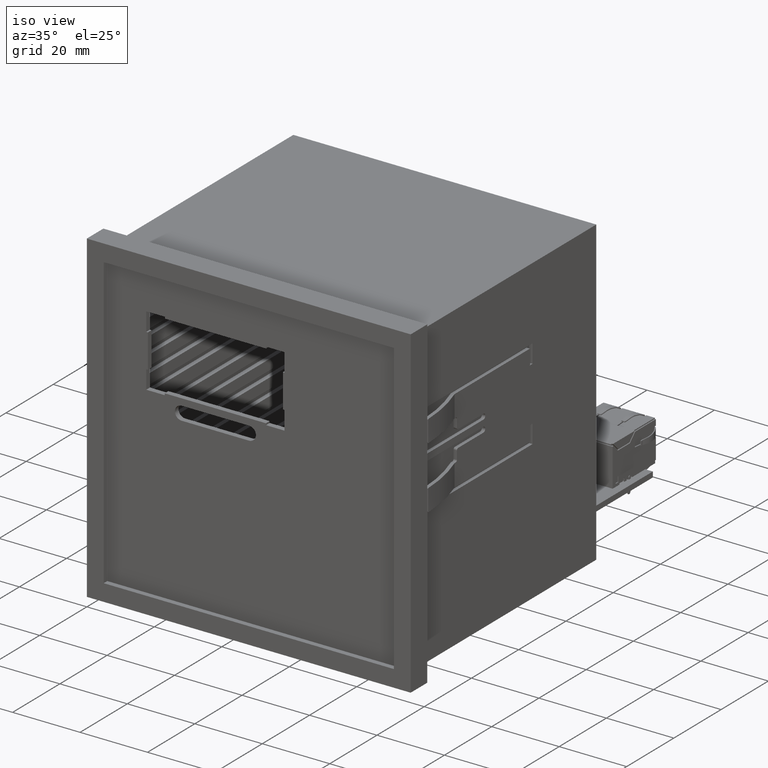
[diagram: clean part render]
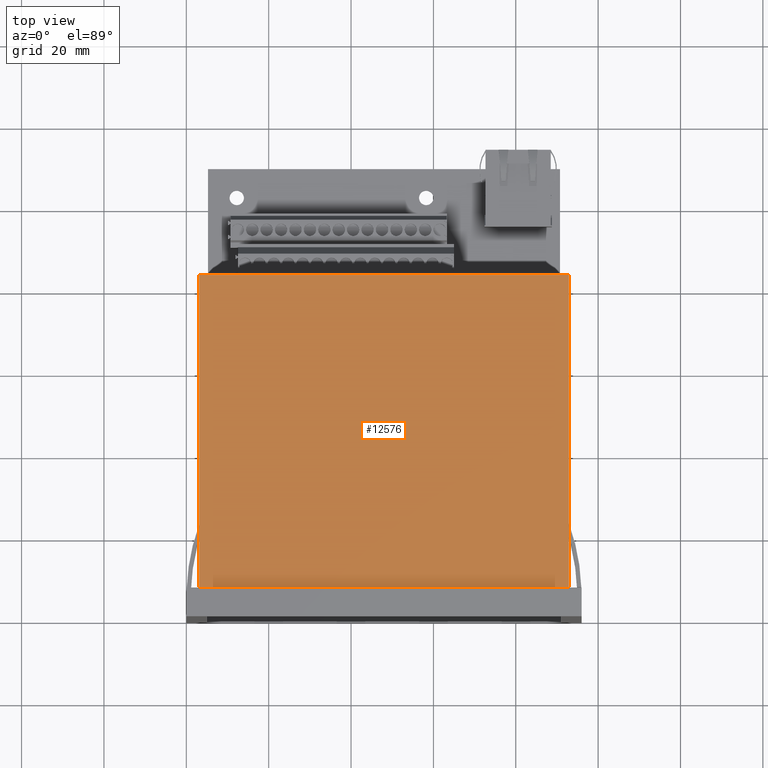
[diagram: tour spotlight — one face highlighted and labeled with its STEP entity id]
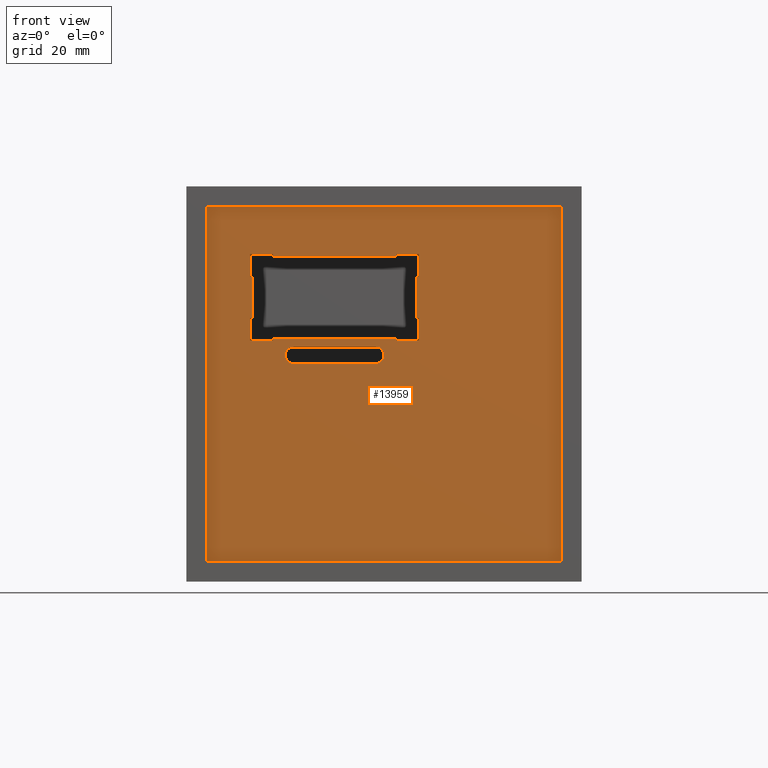
[diagram: tour spotlight — one face highlighted and labeled with its STEP entity id]
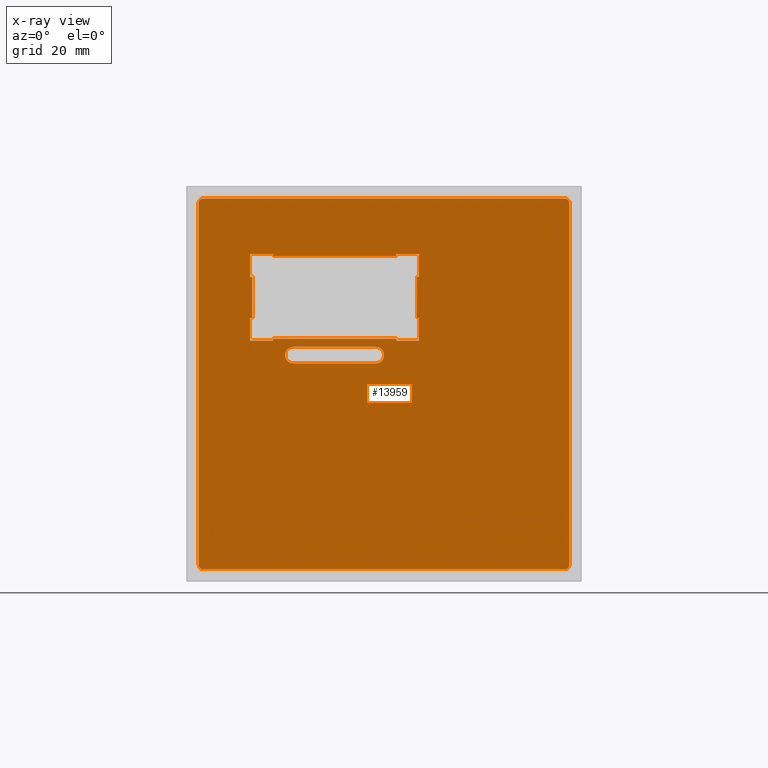
[diagram: x-ray of the same camera — body ghosted, this tour face saturated]
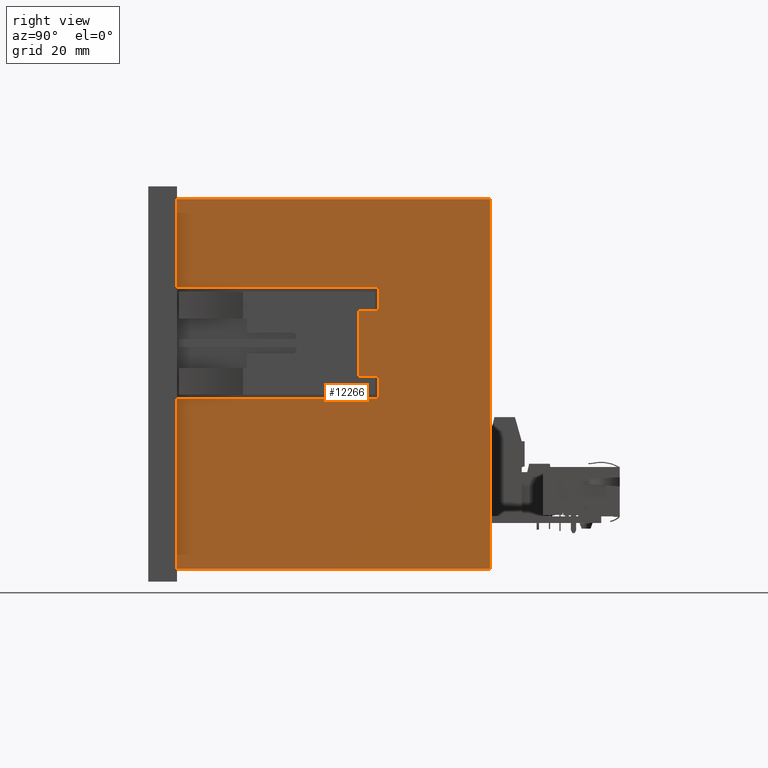
[diagram: tour spotlight — one face highlighted and labeled with its STEP entity id]
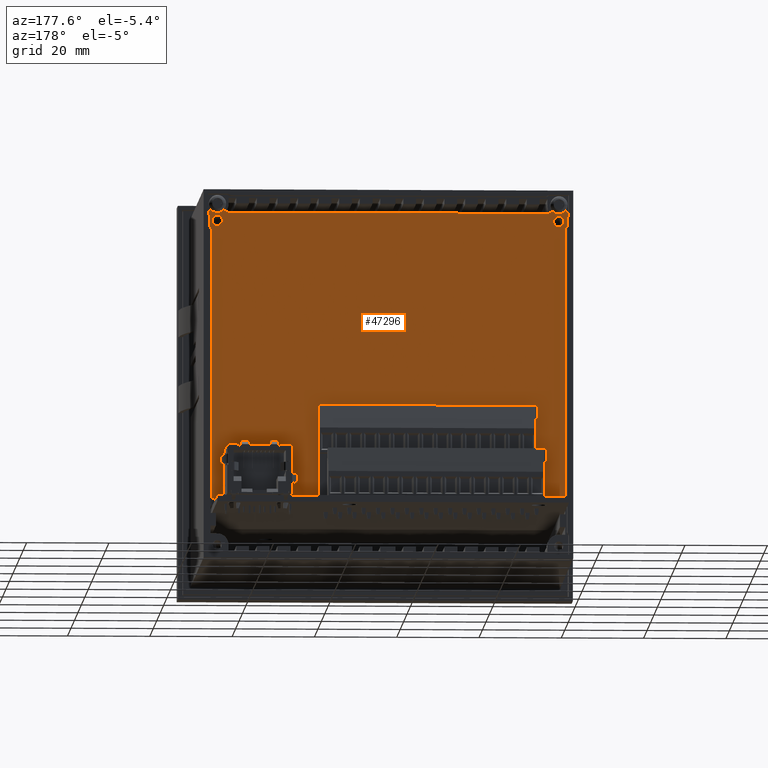
[diagram: tour spotlight — one face highlighted and labeled with its STEP entity id]
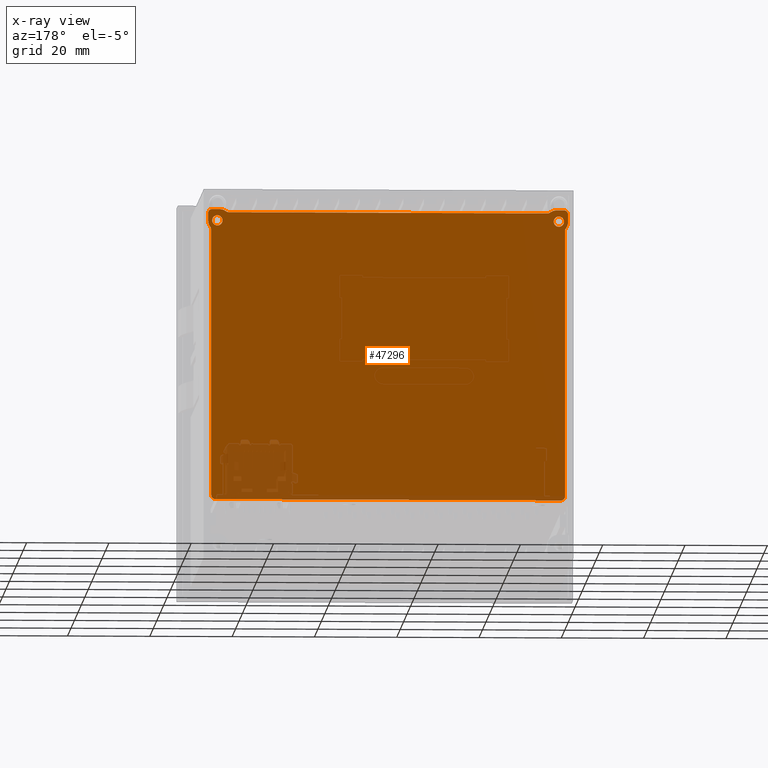
[diagram: x-ray of the same camera — body ghosted, this tour face saturated]
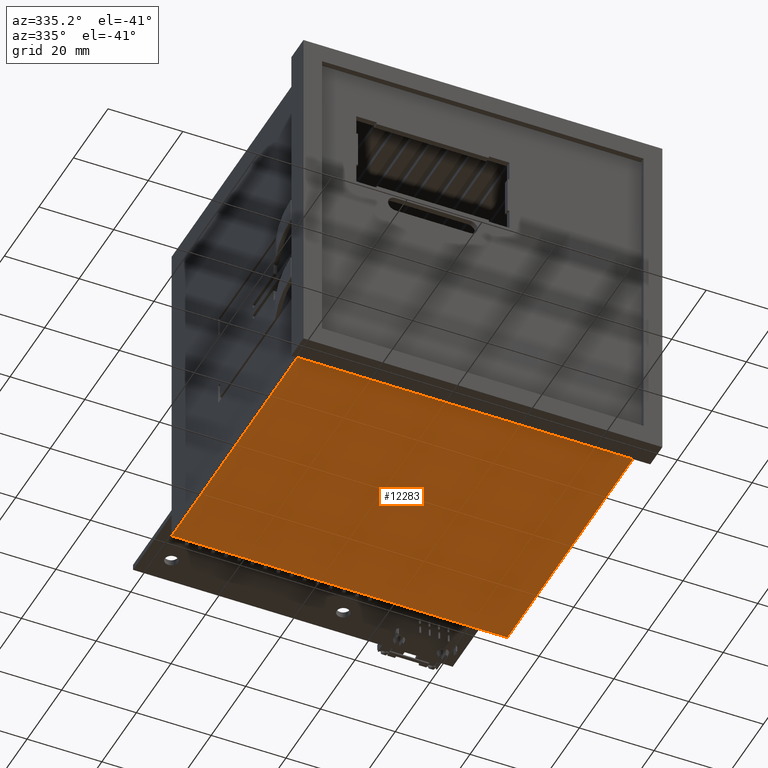
[diagram: tour spotlight — one face highlighted and labeled with its STEP entity id]
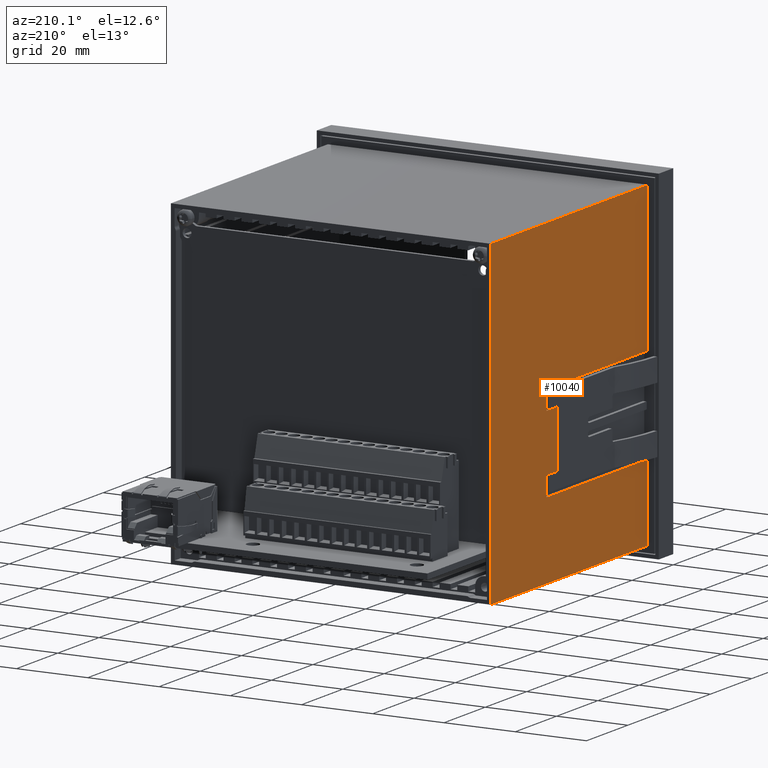
[diagram: tour spotlight — one face highlighted and labeled with its STEP entity id]
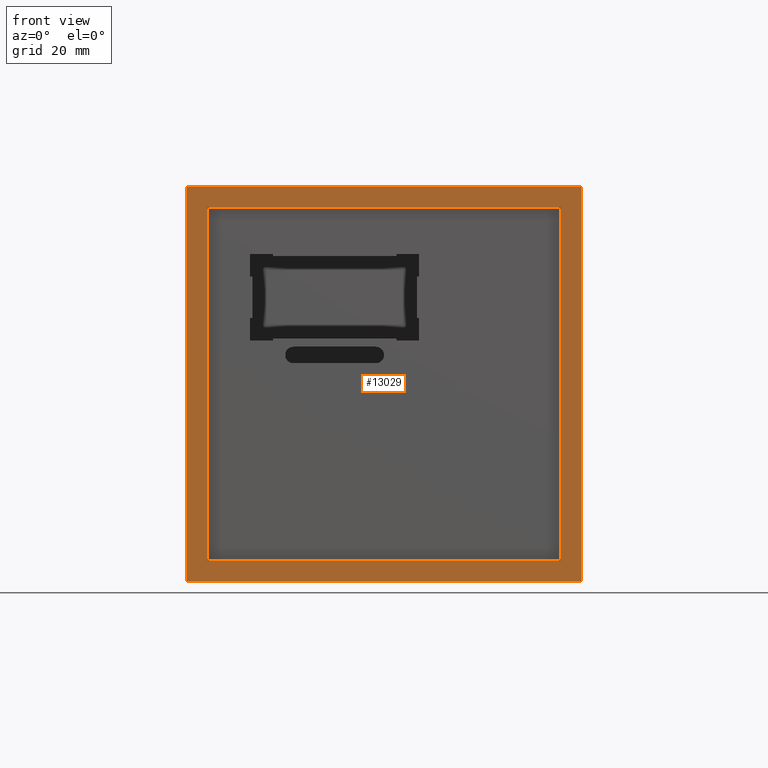
[diagram: tour spotlight — one face highlighted and labeled with its STEP entity id]
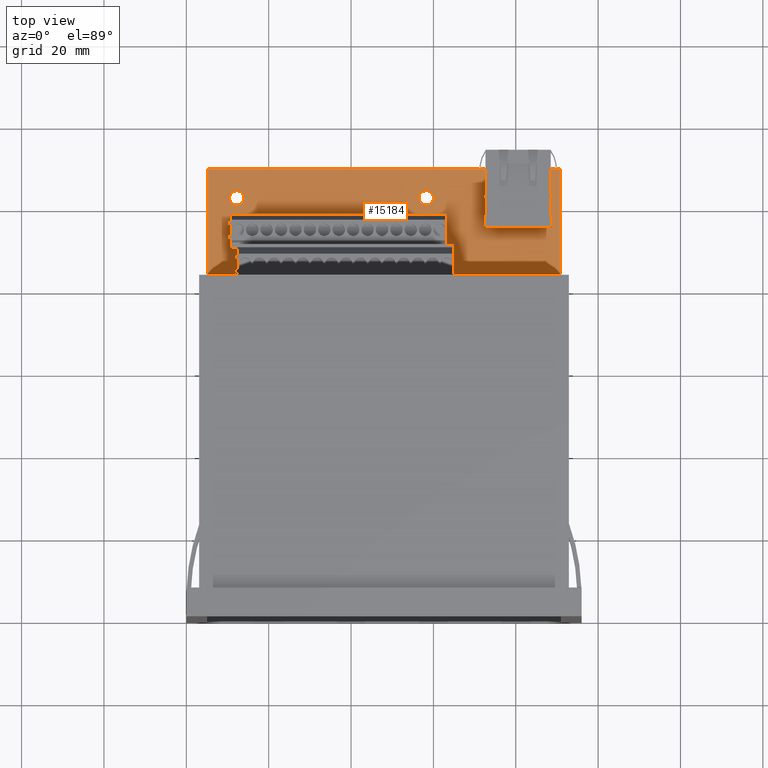
[diagram: tour spotlight — one face highlighted and labeled with its STEP entity id]
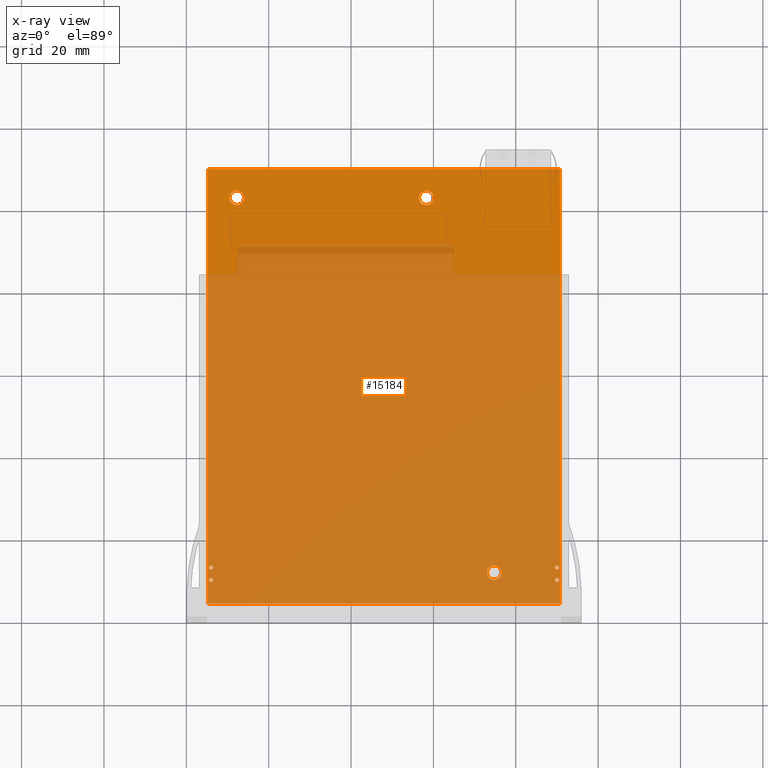
[diagram: x-ray of the same camera — body ghosted, this tour face saturated]
A machine part: a face-by-face anatomy tour. The part has 2012 B-rep faces; the first image is the clean iso view, then the 8 largest visible faces are spotlighted one at a time (largest first), each with its STEP entity span.

Face 1 — top view, entity #12576. In plain terms, the highlighted planar face has unit normal (0, 0, 1).
Definition (entity closure, byte-faithful):
#7466=CARTESIAN_POINT('',(-12.157093014422585,-36.789066365486590,-0.500000000000000));
#7467=VERTEX_POINT('',#7466);
#7468=CARTESIAN_POINT('',(-12.157093014422600,-126.589066365486590,-0.500000000000000));
#7469=VERTEX_POINT('',#7468);
#7470=CARTESIAN_POINT('',(-12.157093014422585,-36.789066365486590,-0.500000000000000));
#7471=DIRECTION('',(0.0,-1.0,0.0));
#7472=VECTOR('',#7471,89.799999999999997);
#7473=LINE('',#7470,#7472);
#7474=EDGE_CURVE('',#7467,#7469,#7473,.T.);
#10009=CARTESIAN_POINT('',(-12.157093014422585,-36.789066365486590,75.500000000000014));
#10010=VERTEX_POINT('',#10009);
#10017=CARTESIAN_POINT('',(-12.157093014422585,-36.789066365486590,-0.500000000000000));
#10018=DIRECTION('',(0.0,0.0,1.0));
#10019=VECTOR('',#10018,76.000000000000014);
#10020=LINE('',#10017,#10019);
#10021=EDGE_CURVE('',#7467,#10010,#10020,.T.);
#12229=CARTESIAN_POINT('',(-12.157093014422600,-126.589066365486590,75.500000000000000));
#12230=VERTEX_POINT('',#12229);
#12231=CARTESIAN_POINT('',(-12.157093014422600,-126.589066365486590,-0.500000000000000));
#12232=DIRECTION('',(0.0,0.0,1.0));
#12233=VECTOR('',#12232,76.0);
#12234=LINE('',#12231,#12233);
#12235=EDGE_CURVE('',#7469,#12230,#12234,.T.);
#12327=CARTESIAN_POINT('',(-12.157093014422585,-36.789066365486590,75.500000000000014));
#12328=DIRECTION('',(0.0,-1.0,0.0));
#12329=VECTOR('',#12328,89.799999999999997);
#12330=LINE('',#12327,#12329);
#12331=EDGE_CURVE('',#10010,#12230,#12330,.T.);
#12565=CARTESIAN_POINT('',(-12.157093014422585,-60.789066365486590,-0.500000000000000));
#12566=DIRECTION('',(1.0,0.0,0.0));
#12567=DIRECTION('',(0.0,0.0,-1.0));
#12568=AXIS2_PLACEMENT_3D('',#12565,#12566,#12567);
#12569=PLANE('',#12568);
#12570=ORIENTED_EDGE('',*,*,#7474,.F.);
#12571=ORIENTED_EDGE('',*,*,#10021,.T.);
#12572=ORIENTED_EDGE('',*,*,#12331,.T.);
#12573=ORIENTED_EDGE('',*,*,#12235,.F.);
#12574=EDGE_LOOP('',(#12570,#12571,#12572,#12573));
#12575=FACE_OUTER_BOUND('',#12574,.T.);
#12576=ADVANCED_FACE('',(#12575),#12569,.T.);

Face 2 — front view, entity #13959. An x-ray twin of the same camera follows (body ghosted, this face saturated) — the face is partly hidden behind the body. In plain terms, the highlighted planar face has unit normal (0, -1, 0).
Definition (entity closure, byte-faithful):
#13272=CARTESIAN_POINT('',(-72.149312758737381,-99.128837455075313,1.0));
#13273=VERTEX_POINT('',#13272);
#13280=CARTESIAN_POINT('',(-72.149312758737381,-98.628837455075313,1.0));
#13281=VERTEX_POINT('',#13280);
#13282=CARTESIAN_POINT('',(-72.149312758737381,-98.628837455075313,1.0));
#13283=DIRECTION('',(0.0,-1.0,0.0));
#13284=VECTOR('',#13283,0.500000000000000);
#13285=LINE('',#13282,#13284);
#13286=EDGE_CURVE('',#13281,#13273,#13285,.T.);
#13310=CARTESIAN_POINT('',(-77.649312758737381,-99.128837455075313,1.0));
#13311=VERTEX_POINT('',#13310);
#13318=CARTESIAN_POINT('',(-72.149312758737381,-99.128837455075313,1.0));
#13319=DIRECTION('',(-1.0,0.0,0.0));
#13320=VECTOR('',#13319,5.500000000000000);
#13321=LINE('',#13318,#13320);
#13322=EDGE_CURVE('',#13273,#13311,#13321,.T.);
#13343=CARTESIAN_POINT('',(-77.149312758737381,-93.628837455075313,1.0));
#13344=VERTEX_POINT('',#13343);
#13351=CARTESIAN_POINT('',(-77.649312758737381,-93.628837455075313,1.0));
#13352=VERTEX_POINT('',#13351);
#13353=CARTESIAN_POINT('',(-77.649312758737381,-93.628837455075313,1.0));
#13354=DIRECTION('',(1.0,0.0,0.0));
#13355=VECTOR('',#13354,0.500000000000000);
#13356=LINE('',#13353,#13355);
#13357=EDGE_CURVE('',#13352,#13344,#13356,.T.);
#13380=CARTESIAN_POINT('',(-77.649312758737381,-99.128837455075313,1.0));
#13381=DIRECTION('',(0.0,1.0,0.0));
#13382=VECTOR('',#13381,5.500000000000000);
#13383=LINE('',#13380,#13382);
#13384=EDGE_CURVE('',#13311,#13352,#13383,.T.);
#13395=CARTESIAN_POINT('',(-42.149312758737381,-98.628837455075313,1.0));
#13396=VERTEX_POINT('',#13395);
#13405=CARTESIAN_POINT('',(-42.149312758737381,-99.128837455075313,1.0));
#13406=VERTEX_POINT('',#13405);
#13407=CARTESIAN_POINT('',(-42.149312758737381,-99.128837455075313,1.0));
#13408=DIRECTION('',(0.0,1.0,0.0));
#13409=VECTOR('',#13408,0.500000000000000);
#13410=LINE('',#13407,#13409);
#13411=EDGE_CURVE('',#13406,#13396,#13410,.T.);
#13444=CARTESIAN_POINT('',(-36.649312758737381,-99.128837455075313,1.0));
#13445=VERTEX_POINT('',#13444);
#13446=CARTESIAN_POINT('',(-36.649312758737381,-99.128837455075313,1.0));
#13447=DIRECTION('',(-1.0,0.0,0.0));
#13448=VECTOR('',#13447,5.500000000000000);
#13449=LINE('',#13446,#13448);
#13450=EDGE_CURVE('',#13445,#13406,#13449,.T.);
#13475=CARTESIAN_POINT('',(-36.649312758737381,-93.628837455075313,1.0));
#13476=VERTEX_POINT('',#13475);
#13477=CARTESIAN_POINT('',(-36.649312758737381,-93.628837455075313,1.0));
#13478=DIRECTION('',(0.0,-1.0,0.0));
#13479=VECTOR('',#13478,5.500000000000000);
#13480=LINE('',#13477,#13479);
#13481=EDGE_CURVE('',#13476,#13445,#13480,.T.);
#13499=CARTESIAN_POINT('',(-37.149312758737381,-93.628837455075313,1.0));
#13500=VERTEX_POINT('',#13499);
#13514=CARTESIAN_POINT('',(-37.149312758737381,-93.628837455075313,1.0));
#13515=DIRECTION('',(1.0,0.0,0.0));
#13516=VECTOR('',#13515,0.500000000000000);
#13517=LINE('',#13514,#13516);
#13518=EDGE_CURVE('',#13500,#13476,#13517,.T.);
#13538=CARTESIAN_POINT('',(-42.149312758737381,-78.128837455075313,1.0));
#13539=VERTEX_POINT('',#13538);
#13546=CARTESIAN_POINT('',(-42.149312758737381,-78.628837455075313,1.0));
#13547=VERTEX_POINT('',#13546);
#13548=CARTESIAN_POINT('',(-42.149312758737381,-78.628837455075313,1.0));
#13549=DIRECTION('',(0.0,1.0,0.0));
#13550=VECTOR('',#13549,0.500000000000000);
#13551=LINE('',#13548,#13550);
#13552=EDGE_CURVE('',#13547,#13539,#13551,.T.);
#13578=CARTESIAN_POINT('',(-37.149312758737381,-83.628837455075313,1.0));
#13579=VERTEX_POINT('',#13578);
#13586=CARTESIAN_POINT('',(-36.649312758737381,-83.628837455075313,1.0));
#13587=VERTEX_POINT('',#13586);
#13588=CARTESIAN_POINT('',(-36.649312758737381,-83.628837455075313,1.0));
#13589=DIRECTION('',(-1.0,0.0,0.0));
#13590=VECTOR('',#13589,0.500000000000000);
#13591=LINE('',#13588,#13590);
#13592=EDGE_CURVE('',#13587,#13579,#13591,.T.);
#13617=CARTESIAN_POINT('',(-36.649312758737381,-78.128837455075313,1.0));
#13618=VERTEX_POINT('',#13617);
#13619=CARTESIAN_POINT('',(-36.649312758737381,-78.128837455075313,1.0));
#13620=DIRECTION('',(0.0,-1.0,0.0));
#13621=VECTOR('',#13620,5.500000000000000);
#13622=LINE('',#13619,#13621);
#13623=EDGE_CURVE('',#13618,#13587,#13622,.T.);
#13646=CARTESIAN_POINT('',(-42.149312758737381,-78.128837455075313,1.0));
#13647=DIRECTION('',(1.0,0.0,0.0));
#13648=VECTOR('',#13647,5.500000000000000);
#13649=LINE('',#13646,#13648);
#13650=EDGE_CURVE('',#13539,#13618,#13649,.T.);
#13671=CARTESIAN_POINT('',(-77.649312758737381,-83.628837455075313,1.0));
#13672=VERTEX_POINT('',#13671);
#13679=CARTESIAN_POINT('',(-77.149312758737381,-83.628837455075313,1.0));
#13680=VERTEX_POINT('',#13679);
#13681=CARTESIAN_POINT('',(-77.149312758737381,-83.628837455075313,1.0));
#13682=DIRECTION('',(-1.0,0.0,0.0));
#13683=VECTOR('',#13682,0.500000000000000);
#13684=LINE('',#13681,#13683);
#13685=EDGE_CURVE('',#13680,#13672,#13684,.T.);
#13711=CARTESIAN_POINT('',(-72.149312758737381,-78.628837455075313,1.0));
#13712=VERTEX_POINT('',#13711);
#13719=CARTESIAN_POINT('',(-72.149312758737381,-78.128837455075313,1.0));
#13720=VERTEX_POINT('',#13719);
#13721=CARTESIAN_POINT('',(-72.149312758737381,-78.128837455075313,1.0));
#13722=DIRECTION('',(0.0,-1.0,0.0));
#13723=VECTOR('',#13722,0.500000000000000);
#13724=LINE('',#13721,#13723);
#13725=EDGE_CURVE('',#13720,#13712,#13724,.T.);
#13750=CARTESIAN_POINT('',(-77.649312758737381,-78.128837455075313,1.0));
#13751=VERTEX_POINT('',#13750);
#13752=CARTESIAN_POINT('',(-77.649312758737381,-78.128837455075313,1.0));
#13753=DIRECTION('',(1.0,0.0,0.0));
#13754=VECTOR('',#13753,5.500000000000000);
#13755=LINE('',#13752,#13754);
#13756=EDGE_CURVE('',#13751,#13720,#13755,.T.);
#13779=CARTESIAN_POINT('',(-77.649312758737381,-83.628837455075313,1.0));
#13780=DIRECTION('',(0.0,1.0,0.0));
#13781=VECTOR('',#13780,5.500000000000000);
#13782=LINE('',#13779,#13781);
#13783=EDGE_CURVE('',#13672,#13751,#13782,.T.);
#13795=CARTESIAN_POINT('',(-72.149312758737381,-98.628837455075313,1.0));
#13796=DIRECTION('',(1.0,0.0,0.0));
#13797=VECTOR('',#13796,30.0);
#13798=LINE('',#13795,#13797);
#13799=EDGE_CURVE('',#13281,#13396,#13798,.T.);
#13811=CARTESIAN_POINT('',(-57.149312758737388,-93.628837455075313,1.0));
#13812=DIRECTION('',(0.0,0.0,1.0));
#13813=DIRECTION('',(1.0,0.0,0.0));
#13814=AXIS2_PLACEMENT_3D('',#13811,#13812,#13813);
#13815=PLANE('',#13814);
#13816=CARTESIAN_POINT('',(-1.149312758737381,-64.628837455075313,1.0));
#13817=VERTEX_POINT('',#13816);
#13818=CARTESIAN_POINT('',(-0.149312758737381,-65.628837455075299,1.0));
#13819=VERTEX_POINT('',#13818);
#13820=CARTESIAN_POINT('',(-1.149312758737381,-65.628837455075299,1.0));
#13821=DIRECTION('',(0.0,0.0,-1.0));
#13822=DIRECTION('',(0.707106781186547,0.707106781186548,0.0));
#13823=AXIS2_PLACEMENT_3D('',#13820,#13821,#13822);
#13824=CIRCLE('',#13823,1.0);
#13825=EDGE_CURVE('',#13817,#13819,#13824,.T.);
#13826=ORIENTED_EDGE('',*,*,#13825,.F.);
#13827=CARTESIAN_POINT('',(-89.149312758737381,-64.628837455075313,1.0));
#13828=VERTEX_POINT('',#13827);
#13829=CARTESIAN_POINT('',(-89.149312758737381,-64.628837455075313,1.0));
#13830=DIRECTION('',(1.0,0.0,0.0));
#13831=VECTOR('',#13830,88.0);
#13832=LINE('',#13829,#13831);
#13833=EDGE_CURVE('',#13828,#13817,#13832,.T.);
#13834=ORIENTED_EDGE('',*,*,#13833,.F.);
#13835=CARTESIAN_POINT('',(-90.149312758737381,-65.628837455075313,1.0));
#13836=VERTEX_POINT('',#13835);
#13837=CARTESIAN_POINT('',(-89.149312758737381,-65.628837455075313,1.0));
#13838=DIRECTION('',(0.0,0.0,-1.000000000000000));
#13839=DIRECTION('',(-0.707106781186548,0.707106781186548,0.0));
#13840=AXIS2_PLACEMENT_3D('',#13837,#13838,#13839);
#13841=CIRCLE('',#13840,1.000000000000000);
#13842=EDGE_CURVE('',#13836,#13828,#13841,.T.);
#13843=ORIENTED_EDGE('',*,*,#13842,.F.);
#13844=CARTESIAN_POINT('',(-90.149312758737366,-153.628837455075310,1.0));
#13845=VERTEX_POINT('',#13844);
#13846=CARTESIAN_POINT('',(-90.149312758737366,-153.628837455075310,1.0));
#13847=DIRECTION('',(0.0,1.0,0.0));
#13848=VECTOR('',#13847,88.0);
#13849=LINE('',#13846,#13848);
#13850=EDGE_CURVE('',#13845,#13836,#13849,.T.);
#13851=ORIENTED_EDGE('',*,*,#13850,.F.);
#13852=CARTESIAN_POINT('',(-89.149312758737366,-154.628837455075310,1.0));
#13853=VERTEX_POINT('',#13852);
#13854=CARTESIAN_POINT('',(-89.149312758737366,-153.628837455075310,1.0));
#13855=DIRECTION('',(0.0,0.0,-1.000000000000000));
#13856=DIRECTION('',(-0.707106781186548,-0.707106781186548,0.0));
#13857=AXIS2_PLACEMENT_3D('',#13854,#13855,#13856);
#13858=CIRCLE('',#13857,1.000000000000000);
#13859=EDGE_CURVE('',#13853,#13845,#13858,.T.);
#13860=ORIENTED_EDGE('',*,*,#13859,.F.);
#13861=CARTESIAN_POINT('',(-1.149312758737381,-154.628837455075310,1.0));
#13862=VERTEX_POINT('',#13861);
#13863=CARTESIAN_POINT('',(-1.149312758737381,-154.628837455075310,1.0));
#13864=DIRECTION('',(-1.0,0.0,0.0));
#13865=VECTOR('',#13864,87.999999999999986);
#13866=LINE('',#13863,#13865);
#13867=EDGE_CURVE('',#13862,#13853,#13866,.T.);
#13868=ORIENTED_EDGE('',*,*,#13867,.F.);
#13869=CARTESIAN_POINT('',(-0.149312758737381,-153.628837455075310,1.0));
#13870=VERTEX_POINT('',#13869);
#13871=CARTESIAN_POINT('',(-1.149312758737381,-153.628837455075310,1.0));
#13872=DIRECTION('',(0.0,0.0,-1.000000000000000));
#13873=DIRECTION('',(0.707106781186548,-0.707106781186548,0.0));
#13874=AXIS2_PLACEMENT_3D('',#13871,#13872,#13873);
#13875=CIRCLE('',#13874,1.000000000000000);
#13876=EDGE_CURVE('',#13870,#13862,#13875,.T.);
#13877=ORIENTED_EDGE('',*,*,#13876,.F.);
#13878=CARTESIAN_POINT('',(-0.149312758737381,-65.628837455075299,1.0));
#13879=DIRECTION('',(0.0,-1.0,0.0));
#13880=VECTOR('',#13879,88.000000000000014);
#13881=LINE('',#13878,#13880);
#13882=EDGE_CURVE('',#13819,#13870,#13881,.T.);
#13883=ORIENTED_EDGE('',*,*,#13882,.F.);
#13884=EDGE_LOOP('',(#13826,#13834,#13843,#13851,#13860,#13868,#13877,#13883));
#13885=FACE_OUTER_BOUND('',#13884,.T.);
#13886=ORIENTED_EDGE('',*,*,#13286,.T.);
#13887=ORIENTED_EDGE('',*,*,#13322,.T.);
#13888=ORIENTED_EDGE('',*,*,#13384,.T.);
#13889=ORIENTED_EDGE('',*,*,#13357,.T.);
#13890=CARTESIAN_POINT('',(-77.149312758737381,-83.628837455075313,1.0));
#13891=DIRECTION('',(0.0,-1.0,0.0));
#13892=VECTOR('',#13891,10.0);
#13893=LINE('',#13890,#13892);
#13894=EDGE_CURVE('',#13680,#13344,#13893,.T.);
#13895=ORIENTED_EDGE('',*,*,#13894,.F.);
#13896=ORIENTED_EDGE('',*,*,#13685,.T.);
#13897=ORIENTED_EDGE('',*,*,#13783,.T.);
#13898=ORIENTED_EDGE('',*,*,#13756,.T.);
#13899=ORIENTED_EDGE('',*,*,#13725,.T.);
#13900=CARTESIAN_POINT('',(-42.149312758737381,-78.628837455075313,1.0));
#13901=DIRECTION('',(-1.0,0.0,0.0));
#13902=VECTOR('',#13901,30.0);
#13903=LINE('',#13900,#13902);
#13904=EDGE_CURVE('',#13547,#13712,#13903,.T.);
#13905=ORIENTED_EDGE('',*,*,#13904,.F.);
#13906=ORIENTED_EDGE('',*,*,#13552,.T.);
#13907=ORIENTED_EDGE('',*,*,#13650,.T.);
#13908=ORIENTED_EDGE('',*,*,#13623,.T.);
#13909=ORIENTED_EDGE('',*,*,#13592,.T.);
#13910=CARTESIAN_POINT('',(-37.149312758737381,-93.628837455075313,1.0));
#13911=DIRECTION('',(0.0,1.0,0.0));
#13912=VECTOR('',#13911,10.0);
#13913=LINE('',#13910,#13912);
#13914=EDGE_CURVE('',#13500,#13579,#13913,.T.);
#13915=ORIENTED_EDGE('',*,*,#13914,.F.);
#13916=ORIENTED_EDGE('',*,*,#13518,.T.);
#13917=ORIENTED_EDGE('',*,*,#13481,.T.);
#13918=ORIENTED_EDGE('',*,*,#13450,.T.);
#13919=ORIENTED_EDGE('',*,*,#13411,.T.);
#13920=ORIENTED_EDGE('',*,*,#13799,.F.);
#13921=EDGE_LOOP('',(#13886,#13887,#13888,#13889,#13895,#13896,#13897,#13898,#13899,#13905,#13906,#13907,#13908,#13909,#13915,#13916,#13917,#13918,#13919,#13920));
#13922=FACE_BOUND('',#13921,.T.);
#13923=CARTESIAN_POINT('',(-47.149312758737388,-100.628837455075310,1.0));
#13924=VERTEX_POINT('',#13923);
#13925=CARTESIAN_POINT('',(-47.149312758737388,-104.628837455075310,1.0));
#13926=VERTEX_POINT('',#13925);
#13927=CARTESIAN_POINT('',(-47.149312758737388,-102.628837455075310,1.0));
#13928=DIRECTION('',(0.0,0.0,-1.0));
#13929=DIRECTION('',(1.0,0.0,0.0));
#13930=AXIS2_PLACEMENT_3D('',#13927,#13928,#13929);
#13931=CIRCLE('',#13930,2.0);
#13932=EDGE_CURVE('',#13924,#13926,#13931,.T.);
#13933=ORIENTED_EDGE('',*,*,#13932,.T.);
#13934=CARTESIAN_POINT('',(-67.149312758737381,-104.628837455075310,1.0));
#13935=VERTEX_POINT('',#13934);
#13936=CARTESIAN_POINT('',(-47.149312758737388,-104.628837455075310,1.0));
#13937=DIRECTION('',(-1.0,0.0,0.0));
#13938=VECTOR('',#13937,19.999999999999993);
#13939=LINE('',#13936,#13938);
#13940=EDGE_CURVE('',#13926,#13935,#13939,.T.);
#13941=ORIENTED_EDGE('',*,*,#13940,.T.);
#13942=CARTESIAN_POINT('',(-67.149312758737381,-100.628837455075310,1.0));
#13943=VERTEX_POINT('',#13942);
#13944=CARTESIAN_POINT('',(-67.149312758737381,-102.628837455075310,1.0));
#13945=DIRECTION('',(0.0,0.0,-1.0));
#13946=DIRECTION('',(1.0,0.0,0.0));
#13947=AXIS2_PLACEMENT_3D('',#13944,#13945,#13946);
#13948=CIRCLE('',#13947,2.0);
#13949=EDGE_CURVE('',#13935,#13943,#13948,.T.);
#13950=ORIENTED_EDGE('',*,*,#13949,.T.);
#13951=CARTESIAN_POINT('',(-67.149312758737381,-100.628837455075310,1.0));
#13952=DIRECTION('',(1.0,0.0,0.0));
#13953=VECTOR('',#13952,19.999999999999993);
#13954=LINE('',#13951,#13953);
#13955=EDGE_CURVE('',#13943,#13924,#13954,.T.);
#13956=ORIENTED_EDGE('',*,*,#13955,.T.);
#13957=EDGE_LOOP('',(#13933,#13941,#13950,#13956));
#13958=FACE_BOUND('',#13957,.T.);
#13959=ADVANCED_FACE('',(#13885,#13922,#13958),#13815,.T.);

Face 3 — right view, entity #12266. In plain terms, the highlighted planar face has unit normal (1, -0, -0).
Definition (entity closure, byte-faithful):
#7468=CARTESIAN_POINT('',(-12.157093014422600,-126.589066365486590,-0.500000000000000));
#7469=VERTEX_POINT('',#7468);
#7476=CARTESIAN_POINT('',(-101.957093014422580,-126.589066365486590,-0.500000000000000));
#7477=VERTEX_POINT('',#7476);
#7478=CARTESIAN_POINT('',(-12.157093014422600,-126.589066365486590,-0.500000000000000));
#7479=DIRECTION('',(-1.0,0.0,0.0));
#7480=VECTOR('',#7479,89.799999999999983);
#7481=LINE('',#7478,#7480);
#7482=EDGE_CURVE('',#7469,#7477,#7481,.T.);
#11625=CARTESIAN_POINT('',(-60.657093014422593,-126.589066365486590,26.499999999999996));
#11626=VERTEX_POINT('',#11625);
#11633=CARTESIAN_POINT('',(-55.157093014422600,-126.589066365486590,26.500000000000000));
#11634=VERTEX_POINT('',#11633);
#11635=CARTESIAN_POINT('',(-55.157093014422600,-126.589066365486590,26.500000000000000));
#11636=DIRECTION('',(-1.0,0.0,0.0));
#11637=VECTOR('',#11636,5.499999999999993);
#11638=LINE('',#11635,#11637);
#11639=EDGE_CURVE('',#11634,#11626,#11638,.T.);
#11664=CARTESIAN_POINT('',(-55.157093014422600,-126.589066365486590,31.500000000000000));
#11665=VERTEX_POINT('',#11664);
#11666=CARTESIAN_POINT('',(-55.157093014422600,-126.589066365486590,31.500000000000000));
#11667=DIRECTION('',(0.0,0.0,-1.0));
#11668=VECTOR('',#11667,5.0);
#11669=LINE('',#11666,#11668);
#11670=EDGE_CURVE('',#11665,#11634,#11669,.T.);
#11695=CARTESIAN_POINT('',(-39.157093014422600,-126.589066365486590,31.500000000000000));
#11696=VERTEX_POINT('',#11695);
#11697=CARTESIAN_POINT('',(-39.157093014422600,-126.589066365486590,31.500000000000000));
#11698=DIRECTION('',(-1.0,0.0,0.0));
#11699=VECTOR('',#11698,16.0);
#11700=LINE('',#11697,#11699);
#11701=EDGE_CURVE('',#11696,#11665,#11700,.T.);
#11726=CARTESIAN_POINT('',(-39.157093014422593,-126.589066365486590,26.500000000000004));
#11727=VERTEX_POINT('',#11726);
#11728=CARTESIAN_POINT('',(-39.157093014422593,-126.589066365486590,26.500000000000004));
#11729=DIRECTION('',(0.0,0.0,1.0));
#11730=VECTOR('',#11729,4.999999999999996);
#11731=LINE('',#11728,#11730);
#11732=EDGE_CURVE('',#11727,#11696,#11731,.T.);
#11757=CARTESIAN_POINT('',(-33.657093014422593,-126.589066365486590,26.500000000000000));
#11758=VERTEX_POINT('',#11757);
#11759=CARTESIAN_POINT('',(-33.657093014422593,-126.589066365486590,26.500000000000000));
#11760=DIRECTION('',(-1.0,0.0,0.0));
#11761=VECTOR('',#11760,5.500000000000000);
#11762=LINE('',#11759,#11761);
#11763=EDGE_CURVE('',#11758,#11727,#11762,.T.);
#11788=CARTESIAN_POINT('',(-33.657093014422600,-126.589066365486590,75.500000000000000));
#11789=VERTEX_POINT('',#11788);
#11790=CARTESIAN_POINT('',(-33.657093014422600,-126.589066365486590,75.500000000000000));
#11791=DIRECTION('',(0.0,0.0,-1.0));
#11792=VECTOR('',#11791,49.0);
#11793=LINE('',#11790,#11792);
#11794=EDGE_CURVE('',#11789,#11758,#11793,.T.);
#11818=CARTESIAN_POINT('',(-60.657093014422593,-126.589066365486590,75.500000000000000));
#11819=VERTEX_POINT('',#11818);
#11826=CARTESIAN_POINT('',(-60.657093014422593,-126.589066365486590,26.499999999999996));
#11827=DIRECTION('',(0.0,0.0,1.0));
#11828=VECTOR('',#11827,49.0);
#11829=LINE('',#11826,#11828);
#11830=EDGE_CURVE('',#11626,#11819,#11829,.T.);
#12223=CARTESIAN_POINT('',(-36.157093014422585,-126.589066365486590,-0.500000000000000));
#12224=DIRECTION('',(0.0,-1.0,0.0));
#12225=DIRECTION('',(0.0,0.0,-1.0));
#12226=AXIS2_PLACEMENT_3D('',#12223,#12224,#12225);
#12227=PLANE('',#12226);
#12228=ORIENTED_EDGE('',*,*,#7482,.F.);
#12229=CARTESIAN_POINT('',(-12.157093014422600,-126.589066365486590,75.500000000000000));
#12230=VERTEX_POINT('',#12229);
#12231=CARTESIAN_POINT('',(-12.157093014422600,-126.589066365486590,-0.500000000000000));
#12232=DIRECTION('',(0.0,0.0,1.0));
#12233=VECTOR('',#12232,76.0);
#12234=LINE('',#12231,#12233);
#12235=EDGE_CURVE('',#7469,#12230,#12234,.T.);
#12236=ORIENTED_EDGE('',*,*,#12235,.T.);
#12237=CARTESIAN_POINT('',(-12.157093014422600,-126.589066365486590,75.500000000000000));
#12238=DIRECTION('',(-1.0,0.0,0.0));
#12239=VECTOR('',#12238,21.500000000000000);
#12240=LINE('',#12237,#12239);
#12241=EDGE_CURVE('',#12230,#11789,#12240,.T.);
#12242=ORIENTED_EDGE('',*,*,#12241,.T.);
#12243=ORIENTED_EDGE('',*,*,#11794,.T.);
#12244=ORIENTED_EDGE('',*,*,#11763,.T.);
#12245=ORIENTED_EDGE('',*,*,#11732,.T.);
#12246=ORIENTED_EDGE('',*,*,#11701,.T.);
#12247=ORIENTED_EDGE('',*,*,#11670,.T.);
#12248=ORIENTED_EDGE('',*,*,#11639,.T.);
#12249=ORIENTED_EDGE('',*,*,#11830,.T.);
#12250=CARTESIAN_POINT('',(-101.957093014422580,-126.589066365486590,75.500000000000000));
#12251=VERTEX_POINT('',#12250);
#12252=CARTESIAN_POINT('',(-60.657093014422593,-126.589066365486590,75.500000000000000));
#12253=DIRECTION('',(-1.0,0.0,0.0));
#12254=VECTOR('',#12253,41.299999999999990);
#12255=LINE('',#12252,#12254);
#12256=EDGE_CURVE('',#11819,#12251,#12255,.T.);
#12257=ORIENTED_EDGE('',*,*,#12256,.T.);
#12258=CARTESIAN_POINT('',(-101.957093014422580,-126.589066365486590,-0.500000000000000));
#12259=DIRECTION('',(0.0,0.0,1.0));
#12260=VECTOR('',#12259,76.0);
#12261=LINE('',#12258,#12260);
#12262=EDGE_CURVE('',#7477,#12251,#12261,.T.);
#12263=ORIENTED_EDGE('',*,*,#12262,.F.);
#12264=EDGE_LOOP('',(#12228,#12236,#12242,#12243,#12244,#12245,#12246,#12247,#12248,#12249,#12257,#12263));
#12265=FACE_OUTER_BOUND('',#12264,.T.);
#12266=ADVANCED_FACE('',(#12265),#12227,.T.);

Face 4 — auxiliary view, entity #47296. An x-ray twin of the same camera follows (body ghosted, this face saturated) — the face is partly hidden behind the body. In plain terms, the highlighted planar face has unit normal (0, 1, 0).
Definition (entity closure, byte-faithful):
#46964=CARTESIAN_POINT('',(30.750000000000000,-53.0,0.0));
#46965=VERTEX_POINT('',#46964);
#46981=CARTESIAN_POINT('',(28.250000000000000,-53.0,0.0));
#46982=VERTEX_POINT('',#46981);
#46989=CARTESIAN_POINT('',(29.500000000000000,-53.0,0.0));
#46990=DIRECTION('',(0.0,0.0,-1.0));
#46991=DIRECTION('',(1.0,0.0,0.0));
#46992=AXIS2_PLACEMENT_3D('',#46989,#46990,#46991);
#46993=CIRCLE('',#46992,1.250000000000000);
#46994=EDGE_CURVE('',#46965,#46982,#46993,.T.);
#47006=CARTESIAN_POINT('',(-52.250000000000000,-53.0,0.0));
#47007=VERTEX_POINT('',#47006);
#47023=CARTESIAN_POINT('',(-54.750000000000000,-53.0,0.0));
#47024=VERTEX_POINT('',#47023);
#47031=CARTESIAN_POINT('',(-53.500000000000000,-53.0,0.0));
#47032=DIRECTION('',(0.0,0.0,-1.0));
#47033=DIRECTION('',(1.0,0.0,0.0));
#47034=AXIS2_PLACEMENT_3D('',#47031,#47032,#47033);
#47035=CIRCLE('',#47034,1.250000000000000);
#47036=EDGE_CURVE('',#47007,#47024,#47035,.T.);
#47046=CARTESIAN_POINT('',(30.0,15.0,0.0));
#47047=VERTEX_POINT('',#47046);
#47048=CARTESIAN_POINT('',(31.0,14.0,0.0));
#47049=VERTEX_POINT('',#47048);
#47050=CARTESIAN_POINT('',(30.0,14.0,0.0));
#47051=DIRECTION('',(0.0,0.0,-1.000000000000000));
#47052=DIRECTION('',(0.707106781186548,0.707106781186548,0.0));
#47053=AXIS2_PLACEMENT_3D('',#47050,#47051,#47052);
#47054=CIRCLE('',#47053,1.000000000000000);
#47055=EDGE_CURVE('',#47047,#47049,#47054,.T.);
#47089=CARTESIAN_POINT('',(31.0,-50.750000000000007,0.0));
#47090=VERTEX_POINT('',#47089);
#47091=CARTESIAN_POINT('',(31.0,14.0,0.0));
#47092=DIRECTION('',(0.0,-1.0,0.0));
#47093=VECTOR('',#47092,64.750000000000000);
#47094=LINE('',#47091,#47093);
#47095=EDGE_CURVE('',#47049,#47090,#47094,.T.);
#47114=CARTESIAN_POINT('',(3.162393162393163,-15.662393162393162,0.0));
#47115=DIRECTION('',(0.0,0.0,1.0));
#47116=DIRECTION('',(1.0,0.0,0.0));
#47117=AXIS2_PLACEMENT_3D('',#47114,#47115,#47116);
#47118=PLANE('',#47117);
#47119=ORIENTED_EDGE('',*,*,#47055,.F.);
#47120=CARTESIAN_POINT('',(-54.000000000000050,15.0,0.0));
#47121=VERTEX_POINT('',#47120);
#47122=CARTESIAN_POINT('',(-54.000000000000050,15.0,0.0));
#47123=DIRECTION('',(1.0,0.0,0.0));
#47124=VECTOR('',#47123,84.000000000000057);
#47125=LINE('',#47122,#47124);
#47126=EDGE_CURVE('',#47121,#47047,#47125,.T.);
#47127=ORIENTED_EDGE('',*,*,#47126,.F.);
#47128=CARTESIAN_POINT('',(-55.000000000000057,14.0,0.0));
#47129=VERTEX_POINT('',#47128);
#47130=CARTESIAN_POINT('',(-54.000000000000050,14.0,0.0));
#47131=DIRECTION('',(0.0,0.0,-1.000000000000000));
#47132=DIRECTION('',(-0.707106781186548,0.707106781186548,0.0));
#47133=AXIS2_PLACEMENT_3D('',#47130,#47131,#47132);
#47134=CIRCLE('',#47133,1.000000000000000);
#47135=EDGE_CURVE('',#47129,#47121,#47134,.T.);
#47136=ORIENTED_EDGE('',*,*,#47135,.F.);
#47137=CARTESIAN_POINT('',(-55.000000000000007,-50.749999999999979,0.0));
#47138=VERTEX_POINT('',#47137);
#47139=CARTESIAN_POINT('',(-55.000000000000007,-50.749999999999979,0.0));
#47140=DIRECTION('',(0.0,1.0,0.0));
#47141=VECTOR('',#47140,64.749999999999972);
#47142=LINE('',#47139,#47141);
#47143=EDGE_CURVE('',#47138,#47129,#47142,.T.);
#47144=ORIENTED_EDGE('',*,*,#47143,.F.);
#47145=CARTESIAN_POINT('',(-55.200000000000010,-51.349999999999987,0.0));
#47146=VERTEX_POINT('',#47145);
#47147=CARTESIAN_POINT('',(-56.0,-50.749999999999979,0.0));
#47148=DIRECTION('',(0.0,0.0,1.000000000000000));
#47149=DIRECTION('',(0.948683298050512,-0.316227766016845,0.0));
#47150=AXIS2_PLACEMENT_3D('',#47147,#47148,#47149);
#47151=CIRCLE('',#47150,1.0);
#47152=EDGE_CURVE('',#47146,#47138,#47151,.T.);
#47153=ORIENTED_EDGE('',*,*,#47152,.F.);
#47154=CARTESIAN_POINT('',(-55.750000000000028,-53.000000000000014,0.0));
#47155=VERTEX_POINT('',#47154);
#47156=CARTESIAN_POINT('',(-53.000000000000028,-53.000000000000014,0.0));
#47157=DIRECTION('',(0.0,0.0,-1.0));
#47158=DIRECTION('',(1.0,0.0,0.0));
#47159=AXIS2_PLACEMENT_3D('',#47156,#47157,#47158);
#47160=CIRCLE('',#47159,2.750000000000000);
#47161=EDGE_CURVE('',#47155,#47146,#47160,.T.);
#47162=ORIENTED_EDGE('',*,*,#47161,.F.);
#47163=CARTESIAN_POINT('',(-55.750000000000028,-54.750000000000014,0.0));
#47164=VERTEX_POINT('',#47163);
#47165=CARTESIAN_POINT('',(-55.750000000000028,-54.750000000000014,0.0));
#47166=DIRECTION('',(0.0,1.0,0.0));
#47167=VECTOR('',#47166,1.750000000000000);
#47168=LINE('',#47165,#47167);
#47169=EDGE_CURVE('',#47164,#47155,#47168,.T.);
#47170=ORIENTED_EDGE('',*,*,#47169,.F.);
#47171=CARTESIAN_POINT('',(-54.750000000000028,-55.750000000000014,0.0));
#47172=VERTEX_POINT('',#47171);
#47173=CARTESIAN_POINT('',(-54.750000000000028,-54.750000000000014,0.0));
#47174=DIRECTION('',(0.0,0.0,-1.000000000000000));
#47175=DIRECTION('',(-0.707106781186548,-0.707106781186548,0.0));
#47176=AXIS2_PLACEMENT_3D('',#47173,#47174,#47175);
#47177=CIRCLE('',#47176,1.000000000000000);
#47178=EDGE_CURVE('',#47172,#47164,#47177,.T.);
#47179=ORIENTED_EDGE('',*,*,#47178,.F.);
#47180=CARTESIAN_POINT('',(-53.000000000000028,-55.750000000000014,0.0));
#47181=VERTEX_POINT('',#47180);
#47182=CARTESIAN_POINT('',(-53.000000000000028,-55.750000000000014,0.0));
#47183=DIRECTION('',(-1.0,0.0,0.0));
#47184=VECTOR('',#47183,1.750000000000000);
#47185=LINE('',#47182,#47184);
#47186=EDGE_CURVE('',#47181,#47172,#47185,.T.);
#47187=ORIENTED_EDGE('',*,*,#47186,.F.);
#47188=CARTESIAN_POINT('',(-51.350000000000016,-55.200000000000003,0.0));
#47189=VERTEX_POINT('',#47188);
#47190=CARTESIAN_POINT('',(-53.000000000000028,-53.000000000000014,0.0));
#47191=DIRECTION('',(0.0,0.0,-1.0));
#47192=DIRECTION('',(1.0,0.0,0.0));
#47193=AXIS2_PLACEMENT_3D('',#47190,#47191,#47192);
#47194=CIRCLE('',#47193,2.750000000000000);
#47195=EDGE_CURVE('',#47189,#47181,#47194,.T.);
#47196=ORIENTED_EDGE('',*,*,#47195,.F.);
#47197=CARTESIAN_POINT('',(-50.750000000000007,-55.0,0.0));
#47198=VERTEX_POINT('',#47197);
#47199=CARTESIAN_POINT('',(-50.750000000000007,-56.0,0.0));
#47200=DIRECTION('',(0.0,0.0,1.0));
#47201=DIRECTION('',(-0.316227766016842,0.948683298050512,0.0));
#47202=AXIS2_PLACEMENT_3D('',#47199,#47200,#47201);
#47203=CIRCLE('',#47202,1.0);
#47204=EDGE_CURVE('',#47198,#47189,#47203,.T.);
#47205=ORIENTED_EDGE('',*,*,#47204,.F.);
#47206=CARTESIAN_POINT('',(26.750000000000000,-55.0,0.0));
#47207=VERTEX_POINT('',#47206);
#47208=CARTESIAN_POINT('',(26.750000000000000,-55.0,0.0));
#47209=DIRECTION('',(-1.0,0.0,0.0));
#47210=VECTOR('',#47209,77.500000000000000);
#47211=LINE('',#47208,#47210);
#47212=EDGE_CURVE('',#47207,#47198,#47211,.T.);
#47213=ORIENTED_EDGE('',*,*,#47212,.F.);
#47214=CARTESIAN_POINT('',(27.350000000000001,-55.200000000000003,0.0));
#47215=VERTEX_POINT('',#47214);
#47216=CARTESIAN_POINT('',(26.750000000000000,-56.0,0.0));
#47217=DIRECTION('',(0.0,0.0,1.0));
#47218=DIRECTION('',(0.316227766016839,0.948683298050513,0.0));
#47219=AXIS2_PLACEMENT_3D('',#47216,#47217,#47218);
#47220=CIRCLE('',#47219,1.0);
#47221=EDGE_CURVE('',#47215,#47207,#47220,.T.);
#47222=ORIENTED_EDGE('',*,*,#47221,.F.);
#47223=CARTESIAN_POINT('',(29.0,-55.750000000000000,0.0));
#47224=VERTEX_POINT('',#47223);
#47225=CARTESIAN_POINT('',(29.0,-53.0,0.0));
#47226=DIRECTION('',(0.0,0.0,1.0));
#47227=DIRECTION('',(1.0,0.0,0.0));
#47228=AXIS2_PLACEMENT_3D('',#47225,#47226,#47227);
#47229=CIRCLE('',#47228,2.750000000000000);
#47230=EDGE_CURVE('',#47215,#47224,#47229,.T.);
#47231=ORIENTED_EDGE('',*,*,#47230,.T.);
#47232=CARTESIAN_POINT('',(30.750000000000000,-55.750000000000000,0.0));
#47233=VERTEX_POINT('',#47232);
#47234=CARTESIAN_POINT('',(29.0,-55.750000000000000,0.0));
#47235=DIRECTION('',(1.0,0.0,0.0));
#47236=VECTOR('',#47235,1.750000000000000);
#47237=LINE('',#47234,#47236);
#47238=EDGE_CURVE('',#47224,#47233,#47237,.T.);
#47239=ORIENTED_EDGE('',*,*,#47238,.T.);
#47240=CARTESIAN_POINT('',(31.750000000000000,-54.750000000000000,0.0));
#47241=VERTEX_POINT('',#47240);
#47242=CARTESIAN_POINT('',(30.750000000000000,-54.750000000000000,0.0));
#47243=DIRECTION('',(0.0,0.0,-1.000000000000000));
#47244=DIRECTION('',(0.707106781186548,-0.707106781186548,0.0));
#47245=AXIS2_PLACEMENT_3D('',#47242,#47243,#47244);
#47246=CIRCLE('',#47245,1.000000000000000);
#47247=EDGE_CURVE('',#47241,#47233,#47246,.T.);
#47248=ORIENTED_EDGE('',*,*,#47247,.F.);
#47249=CARTESIAN_POINT('',(31.750000000000000,-53.0,0.0));
#47250=VERTEX_POINT('',#47249);
#47251=CARTESIAN_POINT('',(31.750000000000000,-54.750000000000000,0.0));
#47252=DIRECTION('',(0.0,1.0,0.0));
#47253=VECTOR('',#47252,1.750000000000000);
#47254=LINE('',#47251,#47253);
#47255=EDGE_CURVE('',#47241,#47250,#47254,.T.);
#47256=ORIENTED_EDGE('',*,*,#47255,.T.);
#47257=CARTESIAN_POINT('',(31.200000000000003,-51.350000000000001,0.0));
#47258=VERTEX_POINT('',#47257);
#47259=CARTESIAN_POINT('',(29.0,-53.0,0.0));
#47260=DIRECTION('',(0.0,0.0,1.0));
#47261=DIRECTION('',(1.0,0.0,0.0));
#47262=AXIS2_PLACEMENT_3D('',#47259,#47260,#47261);
#47263=CIRCLE('',#47262,2.750000000000000);
#47264=EDGE_CURVE('',#47250,#47258,#47263,.T.);
#47265=ORIENTED_EDGE('',*,*,#47264,.T.);
#47266=CARTESIAN_POINT('',(32.0,-50.750000000000007,0.0));
#47267=DIRECTION('',(0.0,0.0,1.0));
#47268=DIRECTION('',(-0.948683298050515,-0.316227766016836,0.0));
#47269=AXIS2_PLACEMENT_3D('',#47266,#47267,#47268);
#47270=CIRCLE('',#47269,1.0);
#47271=EDGE_CURVE('',#47090,#47258,#47270,.T.);
#47272=ORIENTED_EDGE('',*,*,#47271,.F.);
#47273=ORIENTED_EDGE('',*,*,#47095,.F.);
#47274=EDGE_LOOP('',(#47119,#47127,#47136,#47144,#47153,#47162,#47170,#47179,#47187,#47196,#47205,#47213,#47222,#47231,#47239,#47248,#47256,#47265,#47272,#47273));
#47275=FACE_OUTER_BOUND('',#47274,.T.);
#47276=CARTESIAN_POINT('',(29.500000000000000,-53.0,0.0));
#47277=DIRECTION('',(0.0,0.0,-1.0));
#47278=DIRECTION('',(1.0,0.0,0.0));
#47279=AXIS2_PLACEMENT_3D('',#47276,#47277,#47278);
#47280=CIRCLE('',#47279,1.250000000000000);
#47281=EDGE_CURVE('',#46982,#46965,#47280,.T.);
#47282=ORIENTED_EDGE('',*,*,#47281,.T.);
#47283=ORIENTED_EDGE('',*,*,#46994,.T.);
#47284=EDGE_LOOP('',(#47282,#47283));
#47285=FACE_BOUND('',#47284,.T.);
#47286=CARTESIAN_POINT('',(-53.500000000000000,-53.0,0.0));
#47287=DIRECTION('',(0.0,0.0,-1.0));
#47288=DIRECTION('',(1.0,0.0,0.0));
#47289=AXIS2_PLACEMENT_3D('',#47286,#47287,#47288);
#47290=CIRCLE('',#47289,1.250000000000000);
#47291=EDGE_CURVE('',#47024,#47007,#47290,.T.);
#47292=ORIENTED_EDGE('',*,*,#47291,.T.);
#47293=ORIENTED_EDGE('',*,*,#47036,.T.);
#47294=EDGE_LOOP('',(#47292,#47293));
#47295=FACE_BOUND('',#47294,.T.);
#47296=ADVANCED_FACE('',(#47275,#47285,#47295),#47118,.T.);

Face 5 — auxiliary view, entity #12283. In plain terms, the highlighted planar face has unit normal (-0, -0, -1).
Definition (entity closure, byte-faithful):
#7476=CARTESIAN_POINT('',(-101.957093014422580,-126.589066365486590,-0.500000000000000));
#7477=VERTEX_POINT('',#7476);
#7484=CARTESIAN_POINT('',(-101.957093014422600,-36.789066365486590,-0.500000000000000));
#7485=VERTEX_POINT('',#7484);
#7486=CARTESIAN_POINT('',(-101.957093014422580,-126.589066365486590,-0.500000000000000));
#7487=DIRECTION('',(0.0,1.0,0.0));
#7488=VECTOR('',#7487,89.799999999999997);
#7489=LINE('',#7486,#7488);
#7490=EDGE_CURVE('',#7477,#7485,#7489,.T.);
#10024=CARTESIAN_POINT('',(-101.957093014422600,-36.789066365486590,75.500000000000014));
#10025=VERTEX_POINT('',#10024);
#10026=CARTESIAN_POINT('',(-101.957093014422600,-36.789066365486590,-0.500000000000000));
#10027=DIRECTION('',(0.0,0.0,1.0));
#10028=VECTOR('',#10027,76.000000000000014);
#10029=LINE('',#10026,#10028);
#10030=EDGE_CURVE('',#7485,#10025,#10029,.T.);
#12250=CARTESIAN_POINT('',(-101.957093014422580,-126.589066365486590,75.500000000000000));
#12251=VERTEX_POINT('',#12250);
#12258=CARTESIAN_POINT('',(-101.957093014422580,-126.589066365486590,-0.500000000000000));
#12259=DIRECTION('',(0.0,0.0,1.0));
#12260=VECTOR('',#12259,76.0);
#12261=LINE('',#12258,#12260);
#12262=EDGE_CURVE('',#7477,#12251,#12261,.T.);
#12267=CARTESIAN_POINT('',(-101.957093014422580,-126.589066365486590,-0.500000000000000));
#12268=DIRECTION('',(-1.0,0.0,0.0));
#12269=DIRECTION('',(0.0,0.0,1.0));
#12270=AXIS2_PLACEMENT_3D('',#12267,#12268,#12269);
#12271=PLANE('',#12270);
#12272=CARTESIAN_POINT('',(-101.957093014422580,-126.589066365486590,75.500000000000000));
#12273=DIRECTION('',(0.0,1.0,0.0));
#12274=VECTOR('',#12273,89.799999999999997);
#12275=LINE('',#12272,#12274);
#12276=EDGE_CURVE('',#12251,#10025,#12275,.T.);
#12277=ORIENTED_EDGE('',*,*,#12276,.T.);
#12278=ORIENTED_EDGE('',*,*,#10030,.F.);
#12279=ORIENTED_EDGE('',*,*,#7490,.F.);
#12280=ORIENTED_EDGE('',*,*,#12262,.T.);
#12281=EDGE_LOOP('',(#12277,#12278,#12279,#12280));
#12282=FACE_OUTER_BOUND('',#12281,.T.);
#12283=ADVANCED_FACE('',(#12282),#12271,.T.);

Face 6 — auxiliary view, entity #10040. In plain terms, the highlighted planar face has unit normal (-1, 0, 0).
Definition (entity closure, byte-faithful):
#7466=CARTESIAN_POINT('',(-12.157093014422585,-36.789066365486590,-0.500000000000000));
#7467=VERTEX_POINT('',#7466);
#7484=CARTESIAN_POINT('',(-101.957093014422600,-36.789066365486590,-0.500000000000000));
#7485=VERTEX_POINT('',#7484);
#7492=CARTESIAN_POINT('',(-101.957093014422600,-36.789066365486590,-0.500000000000000));
#7493=DIRECTION('',(1.0,0.0,0.0));
#7494=VECTOR('',#7493,89.800000000000011);
#7495=LINE('',#7492,#7494);
#7496=EDGE_CURVE('',#7485,#7467,#7495,.T.);
#9765=CARTESIAN_POINT('',(-58.957093014422540,-36.789066365486590,26.500000000000011));
#9766=VERTEX_POINT('',#9765);
#9773=CARTESIAN_POINT('',(-58.957093014422540,-36.789066365486590,31.499999999999996));
#9774=VERTEX_POINT('',#9773);
#9775=CARTESIAN_POINT('',(-58.957093014422540,-36.789066365486590,31.499999999999996));
#9776=DIRECTION('',(0.0,0.0,-1.0));
#9777=VECTOR('',#9776,4.999999999999986);
#9778=LINE('',#9775,#9777);
#9779=EDGE_CURVE('',#9774,#9766,#9778,.T.);
#9804=CARTESIAN_POINT('',(-74.957093014422526,-36.789066365486590,31.499999999999996));
#9805=VERTEX_POINT('',#9804);
#9806=CARTESIAN_POINT('',(-74.957093014422526,-36.789066365486590,31.499999999999996));
#9807=DIRECTION('',(1.0,0.0,0.0));
#9808=VECTOR('',#9807,15.999999999999986);
#9809=LINE('',#9806,#9808);
#9810=EDGE_CURVE('',#9805,#9774,#9809,.T.);
#9835=CARTESIAN_POINT('',(-74.957093014422526,-36.789066365486590,26.499999999999993));
#9836=VERTEX_POINT('',#9835);
#9837=CARTESIAN_POINT('',(-74.957093014422526,-36.789066365486590,26.499999999999993));
#9838=DIRECTION('',(0.0,0.0,1.0));
#9839=VECTOR('',#9838,5.000000000000004);
#9840=LINE('',#9837,#9839);
#9841=EDGE_CURVE('',#9836,#9805,#9840,.T.);
#9866=CARTESIAN_POINT('',(-80.457093014422540,-36.789066365486590,26.499999999999989));
#9867=VERTEX_POINT('',#9866);
#9868=CARTESIAN_POINT('',(-80.457093014422540,-36.789066365486590,26.499999999999989));
#9869=DIRECTION('',(1.0,0.0,0.0));
#9870=VECTOR('',#9869,5.500000000000014);
#9871=LINE('',#9868,#9870);
#9872=EDGE_CURVE('',#9867,#9836,#9871,.T.);
#9897=CARTESIAN_POINT('',(-80.457093014422597,-36.789066365486590,75.500000000000014));
#9898=VERTEX_POINT('',#9897);
#9899=CARTESIAN_POINT('',(-80.457093014422597,-36.789066365486590,75.500000000000014));
#9900=DIRECTION('',(0.0,0.0,-1.0));
#9901=VECTOR('',#9900,49.000000000000028);
#9902=LINE('',#9899,#9901);
#9903=EDGE_CURVE('',#9898,#9867,#9902,.T.);
#9929=CARTESIAN_POINT('',(-53.457093014422561,-36.789066365486590,75.500000000000014));
#9930=VERTEX_POINT('',#9929);
#9937=CARTESIAN_POINT('',(-53.457093014422540,-36.789066365486590,26.500000000000011));
#9938=VERTEX_POINT('',#9937);
#9939=CARTESIAN_POINT('',(-53.457093014422540,-36.789066365486590,26.500000000000011));
#9940=DIRECTION('',(0.0,0.0,1.0));
#9941=VECTOR('',#9940,49.0);
#9942=LINE('',#9939,#9941);
#9943=EDGE_CURVE('',#9938,#9930,#9942,.T.);
#9966=CARTESIAN_POINT('',(-58.957093014422540,-36.789066365486590,26.500000000000011));
#9967=DIRECTION('',(1.0,0.0,0.0));
#9968=VECTOR('',#9967,5.500000000000000);
#9969=LINE('',#9966,#9968);
#9970=EDGE_CURVE('',#9766,#9938,#9969,.T.);
#9997=CARTESIAN_POINT('',(-101.957093014422600,-36.789066365486590,-0.500000000000000));
#9998=DIRECTION('',(0.0,1.0,0.0));
#9999=DIRECTION('',(0.0,0.0,1.0));
#10000=AXIS2_PLACEMENT_3D('',#9997,#9998,#9999);
#10001=PLANE('',#10000);
#10002=ORIENTED_EDGE('',*,*,#9903,.T.);
#10003=ORIENTED_EDGE('',*,*,#9872,.T.);
#10004=ORIENTED_EDGE('',*,*,#9841,.T.);
#10005=ORIENTED_EDGE('',*,*,#9810,.T.);
#10006=ORIENTED_EDGE('',*,*,#9779,.T.);
#10007=ORIENTED_EDGE('',*,*,#9970,.T.);
#10008=ORIENTED_EDGE('',*,*,#9943,.T.);
#10009=CARTESIAN_POINT('',(-12.157093014422585,-36.789066365486590,75.500000000000014));
#10010=VERTEX_POINT('',#10009);
#10011=CARTESIAN_POINT('',(-53.457093014422561,-36.789066365486590,75.500000000000014));
#10012=DIRECTION('',(1.0,0.0,0.0));
#10013=VECTOR('',#10012,41.299999999999976);
#10014=LINE('',#10011,#10013);
#10015=EDGE_CURVE('',#9930,#10010,#10014,.T.);
#10016=ORIENTED_EDGE('',*,*,#10015,.T.);
#10017=CARTESIAN_POINT('',(-12.157093014422585,-36.789066365486590,-0.500000000000000));
#10018=DIRECTION('',(0.0,0.0,1.0));
#10019=VECTOR('',#10018,76.000000000000014);
#10020=LINE('',#10017,#10019);
#10021=EDGE_CURVE('',#7467,#10010,#10020,.T.);
#10022=ORIENTED_EDGE('',*,*,#10021,.F.);
#10023=ORIENTED_EDGE('',*,*,#7496,.F.);
#10024=CARTESIAN_POINT('',(-101.957093014422600,-36.789066365486590,75.500000000000014));
#10025=VERTEX_POINT('',#10024);
#10026=CARTESIAN_POINT('',(-101.957093014422600,-36.789066365486590,-0.500000000000000));
#10027=DIRECTION('',(0.0,0.0,1.0));
#10028=VECTOR('',#10027,76.000000000000014);
#10029=LINE('',#10026,#10028);
#10030=EDGE_CURVE('',#7485,#10025,#10029,.T.);
#10031=ORIENTED_EDGE('',*,*,#10030,.T.);
#10032=CARTESIAN_POINT('',(-101.957093014422600,-36.789066365486590,75.500000000000014));
#10033=DIRECTION('',(1.0,0.0,0.0));
#10034=VECTOR('',#10033,21.500000000000000);
#10035=LINE('',#10032,#10034);
#10036=EDGE_CURVE('',#10025,#9898,#10035,.T.);
#10037=ORIENTED_EDGE('',*,*,#10036,.T.);
#10038=EDGE_LOOP('',(#10002,#10003,#10004,#10005,#10006,#10007,#10008,#10016,#10022,#10023,#10031,#10037));
#10039=FACE_OUTER_BOUND('',#10038,.T.);
#10040=ADVANCED_FACE('',(#10039),#10001,.T.);

Face 7 — front view, entity #13029. In plain terms, the highlighted planar face has unit normal (0, 1, -0).
Definition (entity closure, byte-faithful):
#12780=CARTESIAN_POINT('',(-95.957091689717330,-83.796288197874318,-0.500000000000000));
#12781=VERTEX_POINT('',#12780);
#12788=CARTESIAN_POINT('',(-9.957091689717345,-83.796288197874318,-0.500000000000000));
#12789=VERTEX_POINT('',#12788);
#12790=CARTESIAN_POINT('',(-95.957091689717330,-83.796288197874318,-0.500000000000000));
#12791=DIRECTION('',(1.0,0.0,0.0));
#12792=VECTOR('',#12791,85.999999999999986);
#12793=LINE('',#12790,#12792);
#12794=EDGE_CURVE('',#12781,#12789,#12793,.T.);
#12811=CARTESIAN_POINT('',(-95.957091689717330,-169.796288197874330,-0.500000000000000));
#12812=VERTEX_POINT('',#12811);
#12819=CARTESIAN_POINT('',(-95.957091689717330,-169.796288197874330,-0.500000000000000));
#12820=DIRECTION('',(0.0,1.0,0.0));
#12821=VECTOR('',#12820,86.000000000000014);
#12822=LINE('',#12819,#12821);
#12823=EDGE_CURVE('',#12812,#12781,#12822,.T.);
#12844=CARTESIAN_POINT('',(-4.957091689717331,-78.796288197874304,-0.500000000000000));
#12845=VERTEX_POINT('',#12844);
#12852=CARTESIAN_POINT('',(-100.957091689717340,-78.796288197874318,-0.500000000000000));
#12853=VERTEX_POINT('',#12852);
#12854=CARTESIAN_POINT('',(-100.957091689717340,-78.796288197874318,-0.500000000000000));
#12855=DIRECTION('',(1.0,0.0,0.0));
#12856=VECTOR('',#12855,96.000000000000014);
#12857=LINE('',#12854,#12856);
#12858=EDGE_CURVE('',#12853,#12845,#12857,.T.);
#12882=CARTESIAN_POINT('',(-4.957091689717345,-174.796288197874330,-0.500000000000000));
#12883=VERTEX_POINT('',#12882);
#12890=CARTESIAN_POINT('',(-4.957091689717331,-78.796288197874304,-0.500000000000000));
#12891=DIRECTION('',(0.0,-1.0,0.0));
#12892=VECTOR('',#12891,96.000000000000028);
#12893=LINE('',#12890,#12892);
#12894=EDGE_CURVE('',#12845,#12883,#12893,.T.);
#12913=CARTESIAN_POINT('',(-100.957091689717330,-174.796288197874330,-0.500000000000000));
#12914=VERTEX_POINT('',#12913);
#12921=CARTESIAN_POINT('',(-4.957091689717345,-174.796288197874330,-0.500000000000000));
#12922=DIRECTION('',(-1.0,0.0,0.0));
#12923=VECTOR('',#12922,95.999999999999986);
#12924=LINE('',#12921,#12923);
#12925=EDGE_CURVE('',#12883,#12914,#12924,.T.);
#12943=CARTESIAN_POINT('',(-100.957091689717330,-174.796288197874330,-0.500000000000000));
#12944=DIRECTION('',(0.0,1.0,0.0));
#12945=VECTOR('',#12944,96.000000000000014);
#12946=LINE('',#12943,#12945);
#12947=EDGE_CURVE('',#12914,#12853,#12946,.T.);
#12959=CARTESIAN_POINT('',(-9.957091689717331,-169.796288197874330,-0.500000000000000));
#12960=VERTEX_POINT('',#12959);
#12967=CARTESIAN_POINT('',(-9.957091689717331,-169.796288197874330,-0.500000000000000));
#12968=DIRECTION('',(-1.0,0.0,0.0));
#12969=VECTOR('',#12968,86.0);
#12970=LINE('',#12967,#12969);
#12971=EDGE_CURVE('',#12960,#12812,#12970,.T.);
#12984=CARTESIAN_POINT('',(-9.957091689717345,-83.796288197874318,-0.500000000000000));
#12985=DIRECTION('',(0.0,-1.0,0.0));
#12986=VECTOR('',#12985,86.000000000000014);
#12987=LINE('',#12984,#12986);
#12988=EDGE_CURVE('',#12789,#12960,#12987,.T.);
#13012=CARTESIAN_POINT('',(-52.957091689717323,-126.796288197874320,-0.500000000000000));
#13013=DIRECTION('',(0.0,0.0,1.0));
#13014=DIRECTION('',(1.0,0.0,0.0));
#13015=AXIS2_PLACEMENT_3D('',#13012,#13013,#13014);
#13016=PLANE('',#13015);
#13017=ORIENTED_EDGE('',*,*,#12947,.T.);
#13018=ORIENTED_EDGE('',*,*,#12858,.T.);
#13019=ORIENTED_EDGE('',*,*,#12894,.T.);
#13020=ORIENTED_EDGE('',*,*,#12925,.T.);
#13021=EDGE_LOOP('',(#13017,#13018,#13019,#13020));
#13022=FACE_OUTER_BOUND('',#13021,.T.);
#13023=ORIENTED_EDGE('',*,*,#12823,.F.);
#13024=ORIENTED_EDGE('',*,*,#12971,.F.);
#13025=ORIENTED_EDGE('',*,*,#12988,.F.);
#13026=ORIENTED_EDGE('',*,*,#12794,.F.);
#13027=EDGE_LOOP('',(#13023,#13024,#13025,#13026));
#13028=FACE_BOUND('',#13027,.T.);
#13029=ADVANCED_FACE('',(#13022,#13028),#13016,.F.);

Face 8 — top view, entity #15184. An x-ray twin of the same camera follows (body ghosted, this face saturated) — the face is partly hidden behind the body. In plain terms, the highlighted planar face has unit normal (0, 0, 1).
Definition (entity closure, byte-faithful):
#14564=CARTESIAN_POINT('',(-41.750000000000000,-11.300000000000001,0.800000000000000));
#14565=VERTEX_POINT('',#14564);
#14574=CARTESIAN_POINT('',(-42.750000000000000,-11.300000000000001,0.800000000000011));
#14575=VERTEX_POINT('',#14574);
#14576=CARTESIAN_POINT('',(-42.250000000000000,-11.300000000000001,0.800000000000011));
#14577=DIRECTION('',(0.0,0.0,-1.0));
#14578=DIRECTION('',(1.0,0.0,0.0));
#14579=AXIS2_PLACEMENT_3D('',#14576,#14577,#14578);
#14580=CIRCLE('',#14579,0.500000000000000);
#14581=EDGE_CURVE('',#14575,#14565,#14580,.T.);
#14606=CARTESIAN_POINT('',(42.250000000000000,-11.300000000000001,0.800000000000000));
#14607=VERTEX_POINT('',#14606);
#14616=CARTESIAN_POINT('',(41.250000000000000,-11.300000000000001,0.800000000000011));
#14617=VERTEX_POINT('',#14616);
#14618=CARTESIAN_POINT('',(41.750000000000000,-11.300000000000001,0.800000000000011));
#14619=DIRECTION('',(0.0,0.0,-1.0));
#14620=DIRECTION('',(1.0,0.0,0.0));
#14621=AXIS2_PLACEMENT_3D('',#14618,#14619,#14620);
#14622=CIRCLE('',#14621,0.500000000000000);
#14623=EDGE_CURVE('',#14617,#14607,#14622,.T.);
#14648=CARTESIAN_POINT('',(-41.750000000000000,-8.300000000000001,0.800000000000000));
#14649=VERTEX_POINT('',#14648);
#14658=CARTESIAN_POINT('',(-42.750000000000000,-8.300000000000001,0.800000000000011));
#14659=VERTEX_POINT('',#14658);
#14660=CARTESIAN_POINT('',(-42.250000000000000,-8.300000000000001,0.800000000000011));
#14661=DIRECTION('',(0.0,0.0,-1.0));
#14662=DIRECTION('',(1.0,0.0,0.0));
#14663=AXIS2_PLACEMENT_3D('',#14660,#14661,#14662);
#14664=CIRCLE('',#14663,0.500000000000000);
#14665=EDGE_CURVE('',#14659,#14649,#14664,.T.);
#14690=CARTESIAN_POINT('',(42.250000000000000,-8.300000000000001,0.800000000000000));
#14691=VERTEX_POINT('',#14690);
#14700=CARTESIAN_POINT('',(41.250000000000000,-8.300000000000001,0.800000000000011));
#14701=VERTEX_POINT('',#14700);
#14702=CARTESIAN_POINT('',(41.750000000000000,-8.300000000000001,0.800000000000011));
#14703=DIRECTION('',(0.0,0.0,-1.0));
#14704=DIRECTION('',(1.0,0.0,0.0));
#14705=AXIS2_PLACEMENT_3D('',#14702,#14703,#14704);
#14706=CIRCLE('',#14705,0.500000000000000);
#14707=EDGE_CURVE('',#14701,#14691,#14706,.T.);
#14732=CARTESIAN_POINT('',(28.250000000000000,-9.500000000000000,0.800000000000000));
#14733=VERTEX_POINT('',#14732);
#14742=CARTESIAN_POINT('',(24.750000000000000,-9.500000000000000,0.800000000000011));
#14743=VERTEX_POINT('',#14742);
#14744=CARTESIAN_POINT('',(26.500000000000000,-9.500000000000000,0.800000000000011));
#14745=DIRECTION('',(0.0,0.0,-1.0));
#14746=DIRECTION('',(1.0,0.0,0.0));
#14747=AXIS2_PLACEMENT_3D('',#14744,#14745,#14746);
#14748=CIRCLE('',#14747,1.750000000000000);
#14749=EDGE_CURVE('',#14743,#14733,#14748,.T.);
#14774=CARTESIAN_POINT('',(-34.250000000000000,81.500000000000000,0.800000000000000));
#14775=VERTEX_POINT('',#14774);
#14784=CARTESIAN_POINT('',(-37.750000000000000,81.500000000000000,0.800000000000011));
#14785=VERTEX_POINT('',#14784);
#14786=CARTESIAN_POINT('',(-36.0,81.500000000000000,0.800000000000011));
#14787=DIRECTION('',(0.0,0.0,-1.0));
#14788=DIRECTION('',(1.0,0.0,0.0));
#14789=AXIS2_PLACEMENT_3D('',#14786,#14787,#14788);
#14790=CIRCLE('',#14789,1.750000000000000);
#14791=EDGE_CURVE('',#14785,#14775,#14790,.T.);
#14816=CARTESIAN_POINT('',(11.750000000000000,81.500000000000000,0.800000000000000));
#14817=VERTEX_POINT('',#14816);
#14826=CARTESIAN_POINT('',(8.250000000000000,81.500000000000000,0.800000000000011));
#14827=VERTEX_POINT('',#14826);
#14828=CARTESIAN_POINT('',(10.0,81.500000000000000,0.800000000000011));
#14829=DIRECTION('',(0.0,0.0,-1.0));
#14830=DIRECTION('',(1.0,0.0,0.0));
#14831=AXIS2_PLACEMENT_3D('',#14828,#14829,#14830);
#14832=CIRCLE('',#14831,1.750000000000000);
#14833=EDGE_CURVE('',#14827,#14817,#14832,.T.);
#14867=CARTESIAN_POINT('',(10.0,81.500000000000000,0.800000000000011));
#14868=DIRECTION('',(0.0,0.0,-1.0));
#14869=DIRECTION('',(1.0,0.0,0.0));
#14870=AXIS2_PLACEMENT_3D('',#14867,#14868,#14869);
#14871=CIRCLE('',#14870,1.750000000000000);
#14872=EDGE_CURVE('',#14817,#14827,#14871,.T.);
#14891=CARTESIAN_POINT('',(-36.0,81.500000000000000,0.800000000000011));
#14892=DIRECTION('',(0.0,0.0,-1.0));
#14893=DIRECTION('',(1.0,0.0,0.0));
#14894=AXIS2_PLACEMENT_3D('',#14891,#14892,#14893);
#14895=CIRCLE('',#14894,1.750000000000000);
#14896=EDGE_CURVE('',#14775,#14785,#14895,.T.);
#14915=CARTESIAN_POINT('',(26.500000000000000,-9.500000000000000,0.800000000000011));
#14916=DIRECTION('',(0.0,0.0,-1.0));
#14917=DIRECTION('',(1.0,0.0,0.0));
#14918=AXIS2_PLACEMENT_3D('',#14915,#14916,#14917);
#14919=CIRCLE('',#14918,1.750000000000000);
#14920=EDGE_CURVE('',#14733,#14743,#14919,.T.);
#14939=CARTESIAN_POINT('',(41.750000000000000,-8.300000000000001,0.800000000000011));
#14940=DIRECTION('',(0.0,0.0,-1.0));
#14941=DIRECTION('',(1.0,0.0,0.0));
#14942=AXIS2_PLACEMENT_3D('',#14939,#14940,#14941);
#14943=CIRCLE('',#14942,0.500000000000000);
#14944=EDGE_CURVE('',#14691,#14701,#14943,.T.);
#14963=CARTESIAN_POINT('',(-42.250000000000000,-8.300000000000001,0.800000000000011));
#14964=DIRECTION('',(0.0,0.0,-1.0));
#14965=DIRECTION('',(1.0,0.0,0.0));
#14966=AXIS2_PLACEMENT_3D('',#14963,#14964,#14965);
#14967=CIRCLE('',#14966,0.500000000000000);
#14968=EDGE_CURVE('',#14649,#14659,#14967,.T.);
#14987=CARTESIAN_POINT('',(41.750000000000000,-11.300000000000001,0.800000000000011));
#14988=DIRECTION('',(0.0,0.0,-1.0));
#14989=DIRECTION('',(1.0,0.0,0.0));
#14990=AXIS2_PLACEMENT_3D('',#14987,#14988,#14989);
#14991=CIRCLE('',#14990,0.500000000000000);
#14992=EDGE_CURVE('',#14607,#14617,#14991,.T.);
#15011=CARTESIAN_POINT('',(-42.250000000000000,-11.300000000000001,0.800000000000011));
#15012=DIRECTION('',(0.0,0.0,-1.0));
#15013=DIRECTION('',(1.0,0.0,0.0));
#15014=AXIS2_PLACEMENT_3D('',#15011,#15012,#15013);
#15015=CIRCLE('',#15014,0.500000000000000);
#15016=EDGE_CURVE('',#14565,#14575,#15015,.T.);
#15026=CARTESIAN_POINT('',(-43.0,-17.0,0.800000000000000));
#15027=VERTEX_POINT('',#15026);
#15028=CARTESIAN_POINT('',(-43.000000000000014,88.500000000000000,0.800000000000000));
#15029=VERTEX_POINT('',#15028);
#15030=CARTESIAN_POINT('',(-43.0,-17.0,0.800000000000000));
#15031=DIRECTION('',(0.0,1.0,0.0));
#15032=VECTOR('',#15031,105.500000000000000);
#15033=LINE('',#15030,#15032);
#15034=EDGE_CURVE('',#15027,#15029,#15033,.T.);
#15066=CARTESIAN_POINT('',(42.500000000000000,88.500000000000000,0.800000000000000));
#15067=VERTEX_POINT('',#15066);
#15068=CARTESIAN_POINT('',(-43.000000000000014,88.500000000000000,0.800000000000000));
#15069=DIRECTION('',(1.0,0.0,0.0));
#15070=VECTOR('',#15069,85.500000000000014);
#15071=LINE('',#15068,#15070);
#15072=EDGE_CURVE('',#15029,#15067,#15071,.T.);
#15097=CARTESIAN_POINT('',(42.500000000000000,-17.000000000000004,0.800000000000000));
#15098=VERTEX_POINT('',#15097);
#15099=CARTESIAN_POINT('',(42.500000000000000,88.500000000000000,0.800000000000000));
#15100=DIRECTION('',(0.0,-1.0,0.0));
#15101=VECTOR('',#15100,105.500000000000000);
#15102=LINE('',#15099,#15101);
#15103=EDGE_CURVE('',#15067,#15098,#15102,.T.);
#15128=CARTESIAN_POINT('',(42.500000000000000,-17.000000000000004,0.800000000000000));
#15129=DIRECTION('',(-1.0,0.0,0.0));
#15130=VECTOR('',#15129,85.500000000000000);
#15131=LINE('',#15128,#15130);
#15132=EDGE_CURVE('',#15098,#15027,#15131,.T.);
#15145=CARTESIAN_POINT('',(-12.500000000000000,35.500000000000000,0.800000000000000));
#15146=DIRECTION('',(0.0,0.0,1.0));
#15147=DIRECTION('',(1.0,0.0,0.0));
#15148=AXIS2_PLACEMENT_3D('',#15145,#15146,#15147);
#15149=PLANE('',#15148);
#15150=ORIENTED_EDGE('',*,*,#15034,.F.);
#15151=ORIENTED_EDGE('',*,*,#15132,.F.);
#15152=ORIENTED_EDGE('',*,*,#15103,.F.);
#15153=ORIENTED_EDGE('',*,*,#15072,.F.);
#15154=EDGE_LOOP('',(#15150,#15151,#15152,#15153));
#15155=FACE_OUTER_BOUND('',#15154,.T.);
#15156=ORIENTED_EDGE('',*,*,#14872,.T.);
#15157=ORIENTED_EDGE('',*,*,#14833,.T.);
#15158=EDGE_LOOP('',(#15156,#15157));
#15159=FACE_BOUND('',#15158,.T.);
#15160=ORIENTED_EDGE('',*,*,#14896,.T.);
#15161=ORIENTED_EDGE('',*,*,#14791,.T.);
#15162=EDGE_LOOP('',(#15160,#15161));
#15163=FACE_BOUND('',#15162,.T.);
#15164=ORIENTED_EDGE('',*,*,#14920,.T.);
#15165=ORIENTED_EDGE('',*,*,#14749,.T.);
#15166=EDGE_LOOP('',(#15164,#15165));
#15167=FACE_BOUND('',#15166,.T.);
#15168=ORIENTED_EDGE('',*,*,#14944,.T.);
#15169=ORIENTED_EDGE('',*,*,#14707,.T.);
#15170=EDGE_LOOP('',(#15168,#15169));
#15171=FACE_BOUND('',#15170,.T.);
#15172=ORIENTED_EDGE('',*,*,#14968,.T.);
#15173=ORIENTED_EDGE('',*,*,#14665,.T.);
#15174=EDGE_LOOP('',(#15172,#15173));
#15175=FACE_BOUND('',#15174,.T.);
#15176=ORIENTED_EDGE('',*,*,#14992,.T.);
#15177=ORIENTED_EDGE('',*,*,#14623,.T.);
#15178=EDGE_LOOP('',(#15176,#15177));
#15179=FACE_BOUND('',#15178,.T.);
#15180=ORIENTED_EDGE('',*,*,#15016,.T.);
#15181=ORIENTED_EDGE('',*,*,#14581,.T.);
#15182=EDGE_LOOP('',(#15180,#15181));
#15183=FACE_BOUND('',#15182,.T.);
#15184=ADVANCED_FACE('',(#15155,#15159,#15163,#15167,#15171,#15175,#15179,#15183),#15149,.T.);